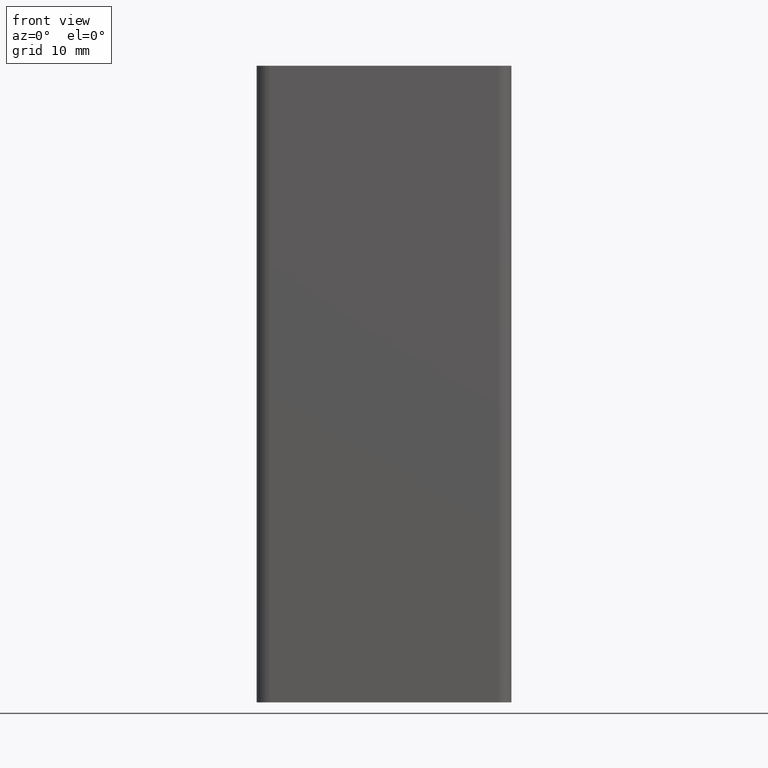
[diagram: clean part render]
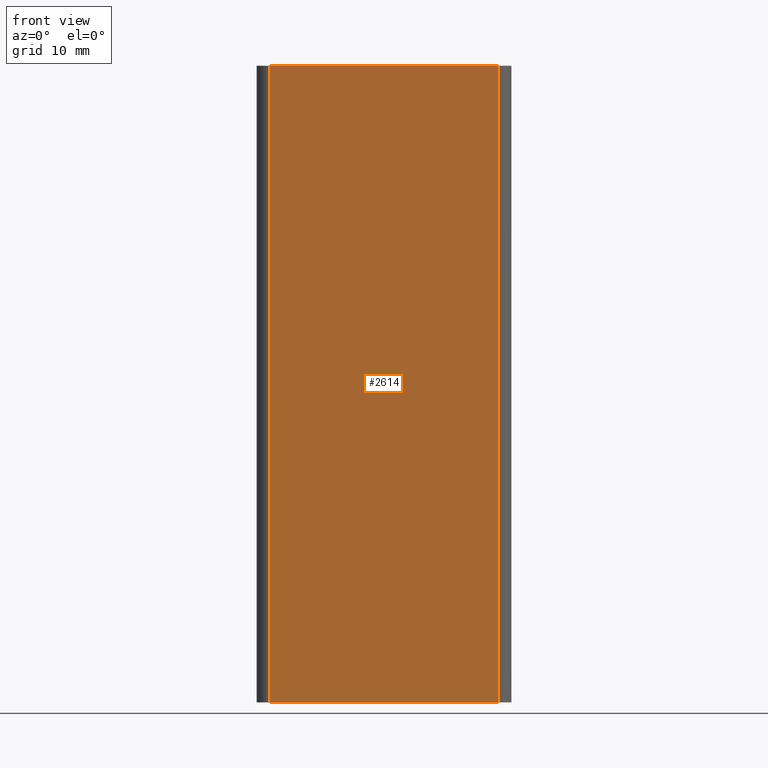
[diagram: same view with one face highlighted and labeled with its STEP entity id]
A machine part, front view. The second image highlights one B-rep face of the part: STEP entity #2614.
In plain terms, the highlighted planar face has unit normal (0, -1, 0).
Its self-contained STEP definition (entity closure, byte-faithful):
#350=FACE_OUTER_BOUND('',#485,.T.);
#485=EDGE_LOOP('',(#2287,#2288,#2289,#2290));
#732=LINE('',#4402,#987);
#736=LINE('',#4415,#991);
#744=LINE('',#4436,#999);
#745=LINE('',#4439,#1000);
#987=VECTOR('',#3620,36.);
#991=VECTOR('',#3632,100.);
#999=VECTOR('',#3656,100.);
#1000=VECTOR('',#3661,36.);
#1247=VERTEX_POINT('',#4399);
#1248=VERTEX_POINT('',#4401);
#1253=VERTEX_POINT('',#4413);
#1258=VERTEX_POINT('',#4435);
#1626=EDGE_CURVE('',#1248,#1247,#732,.T.);
#1633=EDGE_CURVE('',#1253,#1247,#736,.T.);
#1643=EDGE_CURVE('',#1258,#1248,#744,.T.);
#1645=EDGE_CURVE('',#1258,#1253,#745,.T.);
#2287=ORIENTED_EDGE('',*,*,#1626,.T.);
#2288=ORIENTED_EDGE('',*,*,#1633,.F.);
#2289=ORIENTED_EDGE('',*,*,#1645,.F.);
#2290=ORIENTED_EDGE('',*,*,#1643,.T.);
#2483=PLANE('',#2879);
#2614=ADVANCED_FACE('',(#350),#2483,.T.);
#2879=AXIS2_PLACEMENT_3D('',#4438,#3659,#3660);
#3620=DIRECTION('',(-1.,0.,0.));
#3632=DIRECTION('',(0.,0.,1.));
#3656=DIRECTION('',(0.,0.,1.));
#3659=DIRECTION('center_axis',(0.,-1.,0.));
#3660=DIRECTION('ref_axis',(1.,0.,0.));
#3661=DIRECTION('',(-1.,0.,0.));
#4399=CARTESIAN_POINT('',(-18.,-20.,100.));
#4401=CARTESIAN_POINT('',(18.,-20.,100.));
#4402=CARTESIAN_POINT('',(-9.,-20.,100.));
#4413=CARTESIAN_POINT('',(-18.,-20.,0.));
#4415=CARTESIAN_POINT('',(-18.,-20.,0.));
#4435=CARTESIAN_POINT('',(18.,-20.,0.));
#4436=CARTESIAN_POINT('',(18.,-20.,0.));
#4438=CARTESIAN_POINT('Origin',(-18.,-20.,0.));
#4439=CARTESIAN_POINT('',(-9.,-20.,0.));